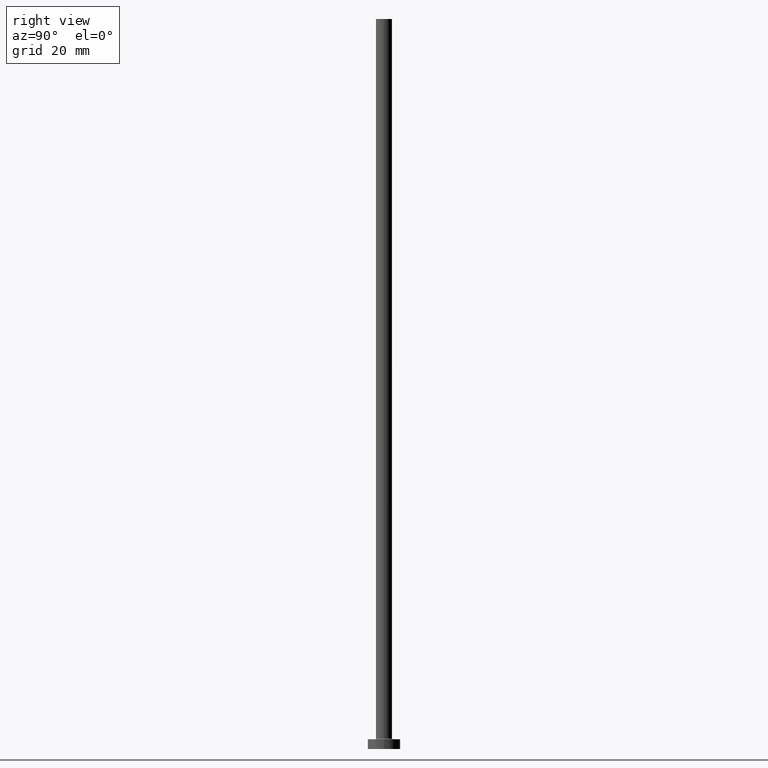
[diagram: clean part render]
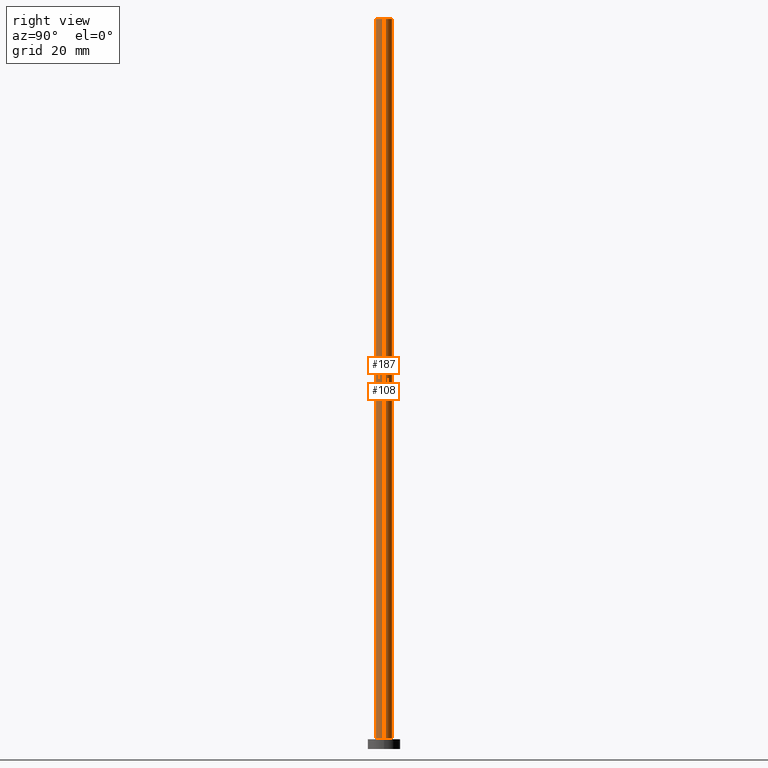
[diagram: same view with one multi-face feature highlighted, each face labeled with its STEP entity id]
A machine part, right view. The highlighted faces form ONE feature: a constant-radius fillet chain: 2 tangent blend faces with common blend radius 2.5 mm. The faces share edges in the B-rep.
Their STEP definitions:
[1] entity #187 (Cylinder):
#3 = AXIS2_PLACEMENT_3D ( 'NONE', #151, #295, #266 ) ;
#15 = VERTEX_POINT ( 'NONE', #390 ) ;
#32 = CIRCLE ( 'NONE', #131, 2.500000000000000000 ) ;
#37 = DIRECTION ( 'NONE',  ( 1.000000000000000000, 0.000000000000000000, 0.000000000000000000 ) ) ;
#59 = DIRECTION ( 'NONE',  ( -0.000000000000000000, -0.000000000000000000, -1.000000000000000000 ) ) ;
#81 = VERTEX_POINT ( 'NONE', #345 ) ;
#103 = DIRECTION ( 'NONE',  ( 0.000000000000000000, 0.000000000000000000, 1.000000000000000000 ) ) ;
#106 = EDGE_LOOP ( 'NONE', ( #249, #378, #452, #236 ) ) ;
#110 = VERTEX_POINT ( 'NONE', #446 ) ;
#118 = CARTESIAN_POINT ( 'NONE',  ( -2.500000000000000000, 0.000000000000000000, 225.0000000000000000 ) ) ;
#131 = AXIS2_PLACEMENT_3D ( 'NONE', #141, #210, #37 ) ;
#134 = VERTEX_POINT ( 'NONE', #188 ) ;
#141 = CARTESIAN_POINT ( 'NONE',  ( 0.000000000000000000, 0.000000000000000000, 3.299999999999997158 ) ) ;
#151 = CARTESIAN_POINT ( 'NONE',  ( 0.000000000000000000, 0.000000000000000000, 225.0000000000000000 ) ) ;
#163 = EDGE_CURVE ( 'NONE', #81, #110, #368, .T. ) ;
#165 = EDGE_CURVE ( 'NONE', #134, #15, #415, .T. ) ;
#187 = ADVANCED_FACE ( 'NONE', ( #253 ), #216, .T. ) ;
#188 = CARTESIAN_POINT ( 'NONE',  ( 2.500000000000000000, 3.061616997868383141E-16, 225.0000000000000000 ) ) ;
#210 = DIRECTION ( 'NONE',  ( 0.000000000000000000, 0.000000000000000000, 1.000000000000000000 ) ) ;
#216 = CYLINDRICAL_SURFACE ( 'NONE', #3, 2.500000000000000000 ) ;
#236 = ORIENTED_EDGE ( 'NONE', *, *, #430, .T. ) ;
#240 = DIRECTION ( 'NONE',  ( 1.000000000000000000, 0.000000000000000000, 0.000000000000000000 ) ) ;
#249 = ORIENTED_EDGE ( 'NONE', *, *, #165, .F. ) ;
#253 = FACE_OUTER_BOUND ( 'NONE', #106, .T. ) ;
#266 = DIRECTION ( 'NONE',  ( -1.000000000000000000, 0.000000000000000000, 0.000000000000000000 ) ) ;
#295 = DIRECTION ( 'NONE',  ( -0.000000000000000000, -0.000000000000000000, -1.000000000000000000 ) ) ;
#304 = CARTESIAN_POINT ( 'NONE',  ( 2.500000000000000000, 3.061616997868383141E-16, 225.0000000000000000 ) ) ;
#324 = CIRCLE ( 'NONE', #395, 2.500000000000000000 ) ;
#344 = VECTOR ( 'NONE', #375, 1000.000000000000000 ) ;
#345 = CARTESIAN_POINT ( 'NONE',  ( -2.500000000000000000, 0.000000000000000000, 225.0000000000000000 ) ) ;
#350 = EDGE_CURVE ( 'NONE', #81, #134, #324, .T. ) ;
#368 = LINE ( 'NONE', #118, #421 ) ;
#375 = DIRECTION ( 'NONE',  ( -0.000000000000000000, -0.000000000000000000, -1.000000000000000000 ) ) ;
#378 = ORIENTED_EDGE ( 'NONE', *, *, #350, .F. ) ;
#390 = CARTESIAN_POINT ( 'NONE',  ( 2.500000000000000000, 3.061616997868383141E-16, 3.299999999999997158 ) ) ;
#395 = AXIS2_PLACEMENT_3D ( 'NONE', #399, #103, #240 ) ;
#399 = CARTESIAN_POINT ( 'NONE',  ( 0.000000000000000000, 0.000000000000000000, 225.0000000000000000 ) ) ;
#415 = LINE ( 'NONE', #304, #344 ) ;
#421 = VECTOR ( 'NONE', #59, 1000.000000000000000 ) ;
#430 = EDGE_CURVE ( 'NONE', #110, #15, #32, .T. ) ;
#446 = CARTESIAN_POINT ( 'NONE',  ( -2.500000000000000000, 0.000000000000000000, 3.299999999999997158 ) ) ;
#452 = ORIENTED_EDGE ( 'NONE', *, *, #163, .T. ) ;
[2] entity #108 (Cylinder):
#15 = VERTEX_POINT ( 'NONE', #390 ) ;
#23 = FACE_OUTER_BOUND ( 'NONE', #178, .T. ) ;
#57 = EDGE_CURVE ( 'NONE', #15, #110, #193, .T. ) ;
#59 = DIRECTION ( 'NONE',  ( -0.000000000000000000, -0.000000000000000000, -1.000000000000000000 ) ) ;
#76 = ORIENTED_EDGE ( 'NONE', *, *, #165, .T. ) ;
#81 = VERTEX_POINT ( 'NONE', #345 ) ;
#89 = CARTESIAN_POINT ( 'NONE',  ( 0.000000000000000000, 0.000000000000000000, 3.299999999999997158 ) ) ;
#95 = DIRECTION ( 'NONE',  ( -1.000000000000000000, 0.000000000000000000, 0.000000000000000000 ) ) ;
#108 = ADVANCED_FACE ( 'NONE', ( #23 ), #202, .T. ) ;
#110 = VERTEX_POINT ( 'NONE', #446 ) ;
#114 = EDGE_CURVE ( 'NONE', #134, #81, #330, .T. ) ;
#118 = CARTESIAN_POINT ( 'NONE',  ( -2.500000000000000000, 0.000000000000000000, 225.0000000000000000 ) ) ;
#134 = VERTEX_POINT ( 'NONE', #188 ) ;
#163 = EDGE_CURVE ( 'NONE', #81, #110, #368, .T. ) ;
#165 = EDGE_CURVE ( 'NONE', #134, #15, #415, .T. ) ;
#176 = DIRECTION ( 'NONE',  ( -0.000000000000000000, -0.000000000000000000, -1.000000000000000000 ) ) ;
#178 = EDGE_LOOP ( 'NONE', ( #228, #76, #397, #347 ) ) ;
#185 = CARTESIAN_POINT ( 'NONE',  ( 0.000000000000000000, 0.000000000000000000, 225.0000000000000000 ) ) ;
#188 = CARTESIAN_POINT ( 'NONE',  ( 2.500000000000000000, 3.061616997868383141E-16, 225.0000000000000000 ) ) ;
#193 = CIRCLE ( 'NONE', #313, 2.500000000000000000 ) ;
#202 = CYLINDRICAL_SURFACE ( 'NONE', #365, 2.500000000000000000 ) ;
#228 = ORIENTED_EDGE ( 'NONE', *, *, #114, .F. ) ;
#247 = CARTESIAN_POINT ( 'NONE',  ( 0.000000000000000000, 0.000000000000000000, 225.0000000000000000 ) ) ;
#256 = DIRECTION ( 'NONE',  ( 1.000000000000000000, 0.000000000000000000, 0.000000000000000000 ) ) ;
#282 = AXIS2_PLACEMENT_3D ( 'NONE', #185, #341, #256 ) ;
#304 = CARTESIAN_POINT ( 'NONE',  ( 2.500000000000000000, 3.061616997868383141E-16, 225.0000000000000000 ) ) ;
#313 = AXIS2_PLACEMENT_3D ( 'NONE', #89, #374, #371 ) ;
#330 = CIRCLE ( 'NONE', #282, 2.500000000000000000 ) ;
#341 = DIRECTION ( 'NONE',  ( 0.000000000000000000, 0.000000000000000000, 1.000000000000000000 ) ) ;
#344 = VECTOR ( 'NONE', #375, 1000.000000000000000 ) ;
#345 = CARTESIAN_POINT ( 'NONE',  ( -2.500000000000000000, 0.000000000000000000, 225.0000000000000000 ) ) ;
#347 = ORIENTED_EDGE ( 'NONE', *, *, #163, .F. ) ;
#365 = AXIS2_PLACEMENT_3D ( 'NONE', #247, #176, #95 ) ;
#368 = LINE ( 'NONE', #118, #421 ) ;
#371 = DIRECTION ( 'NONE',  ( 1.000000000000000000, 0.000000000000000000, 0.000000000000000000 ) ) ;
#374 = DIRECTION ( 'NONE',  ( 0.000000000000000000, 0.000000000000000000, 1.000000000000000000 ) ) ;
#375 = DIRECTION ( 'NONE',  ( -0.000000000000000000, -0.000000000000000000, -1.000000000000000000 ) ) ;
#390 = CARTESIAN_POINT ( 'NONE',  ( 2.500000000000000000, 3.061616997868383141E-16, 3.299999999999997158 ) ) ;
#397 = ORIENTED_EDGE ( 'NONE', *, *, #57, .T. ) ;
#415 = LINE ( 'NONE', #304, #344 ) ;
#421 = VECTOR ( 'NONE', #59, 1000.000000000000000 ) ;
#446 = CARTESIAN_POINT ( 'NONE',  ( -2.500000000000000000, 0.000000000000000000, 3.299999999999997158 ) ) ;